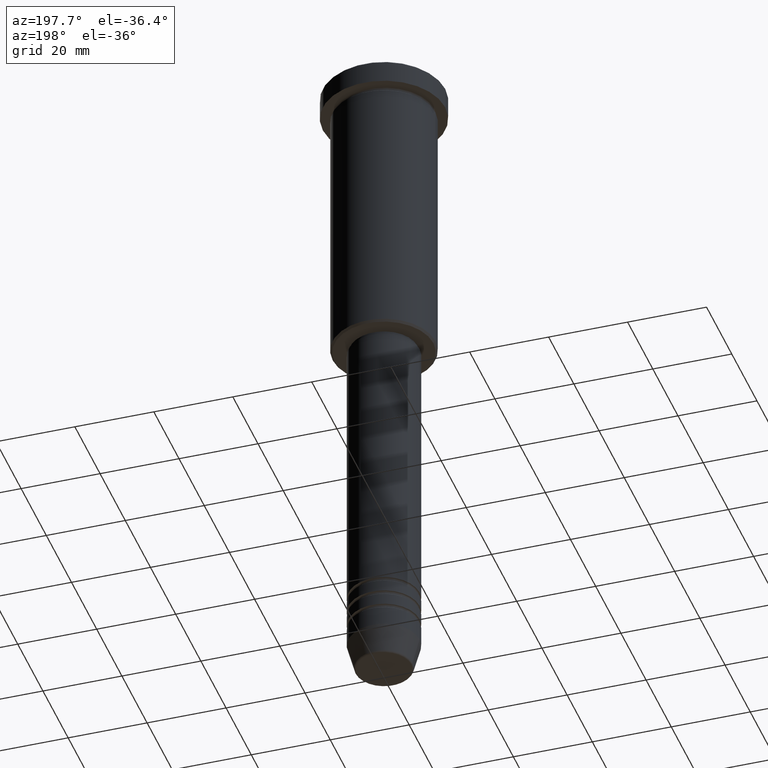
[diagram: clean part render]
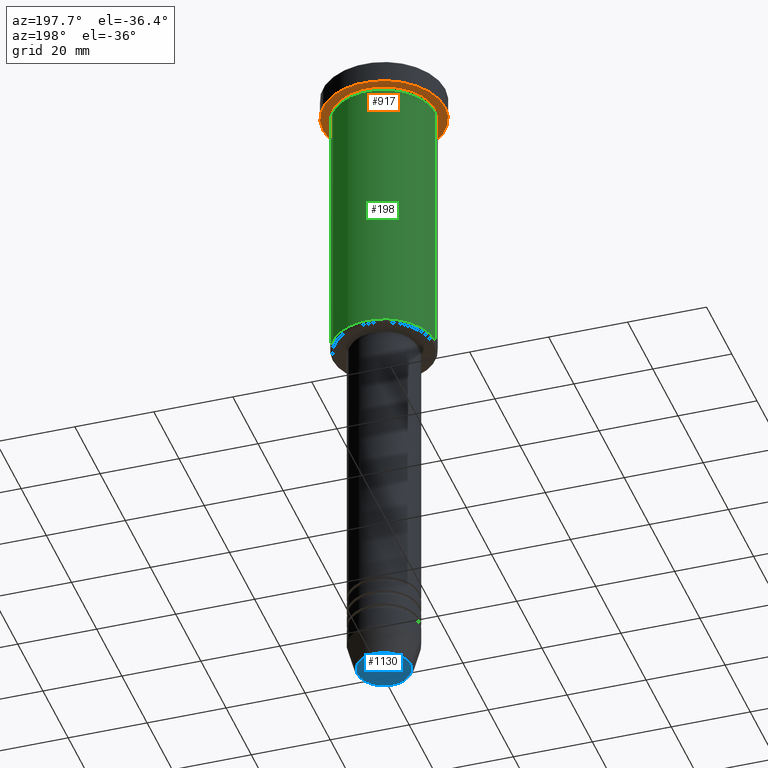
[diagram: same view with three faces highlighted in distinct colors, each labeled with its STEP entity id]
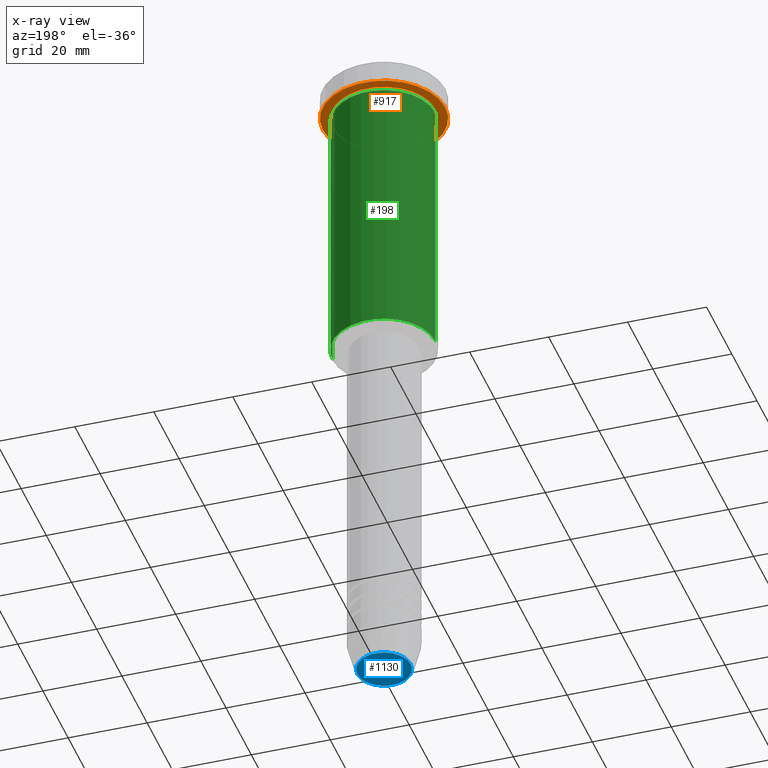
[diagram: x-ray of the same camera — body ghosted, the three highlighted faces saturated]
A machine part, auxiliary view with three faces highlighted in distinct colors.
The next image is the same camera in x-ray (body ghosted, the three faces saturated) — at least one of them is partly hidden behind the body in this view.
Their STEP definitions:

[orange] entity #917 — the highlighted planar face has unit normal (0, 0, -1).
#45 = ORIENTED_EDGE ( 'NONE', *, *, #734, .F. ) ;
#84 = FACE_OUTER_BOUND ( 'NONE', #620, .T. ) ;
#87 = CARTESIAN_POINT ( 'NONE',  ( -13.00000000000000000, 0.000000000000000000, -5.999999999999994671 ) ) ;
#104 = DIRECTION ( 'NONE',  ( -0.000000000000000000, -0.000000000000000000, 1.000000000000000000 ) ) ;
#113 = CIRCLE ( 'NONE', #990, 13.00000000000000000 ) ;
#168 = DIRECTION ( 'NONE',  ( -1.000000000000000000, 0.000000000000000000, 0.000000000000000000 ) ) ;
#172 = ORIENTED_EDGE ( 'NONE', *, *, #961, .T. ) ;
#191 = AXIS2_PLACEMENT_3D ( 'NONE', #788, #703, #611 ) ;
#202 = FACE_BOUND ( 'NONE', #670, .T. ) ;
#278 = DIRECTION ( 'NONE',  ( 0.000000000000000000, 0.000000000000000000, -1.000000000000000000 ) ) ;
#292 = VERTEX_POINT ( 'NONE', #572 ) ;
#297 = DIRECTION ( 'NONE',  ( 1.000000000000000000, 0.000000000000000000, 0.000000000000000000 ) ) ;
#364 = CIRCLE ( 'NONE', #553, 15.50000000000000000 ) ;
#367 = AXIS2_PLACEMENT_3D ( 'NONE', #1093, #278, #911 ) ;
#499 = VERTEX_POINT ( 'NONE', #619 ) ;
#507 = VERTEX_POINT ( 'NONE', #87 ) ;
#510 = DIRECTION ( 'NONE',  ( -1.000000000000000000, 0.000000000000000000, 0.000000000000000000 ) ) ;
#553 = AXIS2_PLACEMENT_3D ( 'NONE', #923, #104, #297 ) ;
#572 = CARTESIAN_POINT ( 'NONE',  ( 15.50000000000000000, 0.000000000000000000, -5.999999999999995559 ) ) ;
#573 = CIRCLE ( 'NONE', #592, 13.00000000000000000 ) ;
#592 = AXIS2_PLACEMENT_3D ( 'NONE', #1153, #615, #168 ) ;
#611 = DIRECTION ( 'NONE',  ( 1.000000000000000000, 0.000000000000000000, 0.000000000000000000 ) ) ;
#615 = DIRECTION ( 'NONE',  ( -0.000000000000000000, -0.000000000000000000, 1.000000000000000000 ) ) ;
#619 = CARTESIAN_POINT ( 'NONE',  ( 13.00000000000000000, 1.592040838891559095E-15, -5.999999999999994671 ) ) ;
#620 = EDGE_LOOP ( 'NONE', ( #1154, #45 ) ) ;
#647 = PLANE ( 'NONE',  #367 ) ;
#657 = ORIENTED_EDGE ( 'NONE', *, *, #939, .T. ) ;
#670 = EDGE_LOOP ( 'NONE', ( #657, #172 ) ) ;
#697 = CARTESIAN_POINT ( 'NONE',  ( 0.000000000000000000, 0.000000000000000000, -5.999999999999995559 ) ) ;
#703 = DIRECTION ( 'NONE',  ( -0.000000000000000000, -0.000000000000000000, 1.000000000000000000 ) ) ;
#710 = CIRCLE ( 'NONE', #191, 15.50000000000000000 ) ;
#734 = EDGE_CURVE ( 'NONE', #848, #292, #364, .T. ) ;
#787 = EDGE_CURVE ( 'NONE', #292, #848, #710, .T. ) ;
#788 = CARTESIAN_POINT ( 'NONE',  ( 0.000000000000000000, 0.000000000000000000, -5.999999999999995559 ) ) ;
#848 = VERTEX_POINT ( 'NONE', #1086 ) ;
#886 = DIRECTION ( 'NONE',  ( -0.000000000000000000, -0.000000000000000000, 1.000000000000000000 ) ) ;
#911 = DIRECTION ( 'NONE',  ( -1.000000000000000000, 0.000000000000000000, -0.000000000000000000 ) ) ;
#917 = ADVANCED_FACE ( 'NONE', ( #202, #84 ), #647, .T. ) ;
#923 = CARTESIAN_POINT ( 'NONE',  ( 0.000000000000000000, 0.000000000000000000, -5.999999999999995559 ) ) ;
#939 = EDGE_CURVE ( 'NONE', #507, #499, #113, .T. ) ;
#961 = EDGE_CURVE ( 'NONE', #499, #507, #573, .T. ) ;
#990 = AXIS2_PLACEMENT_3D ( 'NONE', #697, #886, #510 ) ;
#1086 = CARTESIAN_POINT ( 'NONE',  ( -15.50000000000000000, 1.898202538678397557E-15, -5.999999999999995559 ) ) ;
#1093 = CARTESIAN_POINT ( 'NONE',  ( 0.000000000000000000, 15.50000000000000000, -5.999999999999995559 ) ) ;
#1153 = CARTESIAN_POINT ( 'NONE',  ( 0.000000000000000000, 0.000000000000000000, -5.999999999999995559 ) ) ;
#1154 = ORIENTED_EDGE ( 'NONE', *, *, #787, .F. ) ;

[blue] entity #1130 — the highlighted planar face has unit normal (0, -0, 1).
#100 = CARTESIAN_POINT ( 'NONE',  ( 0.000000000000000000, 0.000000000000000000, -170.9999999999999716 ) ) ;
#194 = PLANE ( 'NONE',  #655 ) ;
#209 = AXIS2_PLACEMENT_3D ( 'NONE', #716, #252, #621 ) ;
#252 = DIRECTION ( 'NONE',  ( 0.000000000000000000, 0.000000000000000000, -1.000000000000000000 ) ) ;
#318 = VERTEX_POINT ( 'NONE', #1133 ) ;
#333 = CARTESIAN_POINT ( 'NONE',  ( 0.000000000000000000, 0.000000000000000000, -170.9999999999999716 ) ) ;
#345 = DIRECTION ( 'NONE',  ( 1.000000000000000000, 0.000000000000000000, 0.000000000000000000 ) ) ;
#346 = AXIS2_PLACEMENT_3D ( 'NONE', #333, #874, #887 ) ;
#376 = FACE_OUTER_BOUND ( 'NONE', #487, .T. ) ;
#381 = DIRECTION ( 'NONE',  ( 0.000000000000000000, -0.000000000000000000, 1.000000000000000000 ) ) ;
#487 = EDGE_LOOP ( 'NONE', ( #1103, #501 ) ) ;
#501 = ORIENTED_EDGE ( 'NONE', *, *, #1142, .T. ) ;
#621 = DIRECTION ( 'NONE',  ( 1.000000000000000000, 0.000000000000000000, 0.000000000000000000 ) ) ;
#624 = VERTEX_POINT ( 'NONE', #755 ) ;
#655 = AXIS2_PLACEMENT_3D ( 'NONE', #100, #381, #345 ) ;
#677 = CIRCLE ( 'NONE', #209, 6.740692158992658278 ) ;
#716 = CARTESIAN_POINT ( 'NONE',  ( 0.000000000000000000, 0.000000000000000000, -170.9999999999999716 ) ) ;
#755 = CARTESIAN_POINT ( 'NONE',  ( -6.740692158992658278, 8.550696569392685681E-16, -170.9999999999999716 ) ) ;
#874 = DIRECTION ( 'NONE',  ( 0.000000000000000000, 0.000000000000000000, -1.000000000000000000 ) ) ;
#887 = DIRECTION ( 'NONE',  ( 1.000000000000000000, 0.000000000000000000, 0.000000000000000000 ) ) ;
#980 = EDGE_CURVE ( 'NONE', #318, #624, #677, .T. ) ;
#1103 = ORIENTED_EDGE ( 'NONE', *, *, #980, .T. ) ;
#1126 = CIRCLE ( 'NONE', #346, 6.740692158992658278 ) ;
#1130 = ADVANCED_FACE ( 'NONE', ( #376 ), #194, .F. ) ;
#1133 = CARTESIAN_POINT ( 'NONE',  ( 6.740692158992658278, 0.000000000000000000, -170.9999999999999716 ) ) ;
#1142 = EDGE_CURVE ( 'NONE', #624, #318, #1126, .T. ) ;

[green] entity #198 — the highlighted cylindrical surface (partial cylindrical patch) has radius 13 mm, axis along (-0, -0, 1).
#21 = ORIENTED_EDGE ( 'NONE', *, *, #533, .F. ) ;
#83 = EDGE_CURVE ( 'NONE', #482, #335, #277, .T. ) ;
#122 = DIRECTION ( 'NONE',  ( 1.000000000000000000, 0.000000000000000000, 0.000000000000000000 ) ) ;
#178 = CARTESIAN_POINT ( 'NONE',  ( 0.000000000000000000, 0.000000000000000000, -75.49999999999995737 ) ) ;
#185 = EDGE_CURVE ( 'NONE', #878, #1034, #743, .T. ) ;
#196 = CYLINDRICAL_SURFACE ( 'NONE', #855, 13.00000000000000178 ) ;
#198 = ADVANCED_FACE ( 'NONE', ( #1010 ), #196, .T. ) ;
#214 = DIRECTION ( 'NONE',  ( -0.000000000000000000, -0.000000000000000000, 1.000000000000000000 ) ) ;
#262 = VECTOR ( 'NONE', #214, 1000.000000000000000 ) ;
#264 = DIRECTION ( 'NONE',  ( -0.000000000000000000, -0.000000000000000000, 1.000000000000000000 ) ) ;
#277 = LINE ( 'NONE', #544, #816 ) ;
#299 = CARTESIAN_POINT ( 'NONE',  ( 0.000000000000000000, 0.000000000000000000, 0.000000000000000000 ) ) ;
#335 = VERTEX_POINT ( 'NONE', #509 ) ;
#434 = EDGE_LOOP ( 'NONE', ( #595, #1040, #21, #569 ) ) ;
#455 = CARTESIAN_POINT ( 'NONE',  ( -13.00000000000000178, 1.592040838891559293E-15, -6.999999999999995559 ) ) ;
#479 = DIRECTION ( 'NONE',  ( -0.000000000000000000, -0.000000000000000000, 1.000000000000000000 ) ) ;
#482 = VERTEX_POINT ( 'NONE', #1076 ) ;
#509 = CARTESIAN_POINT ( 'NONE',  ( 13.00000000000000178, 0.000000000000000000, -6.999999999999995559 ) ) ;
#533 = EDGE_CURVE ( 'NONE', #335, #1034, #1042, .T. ) ;
#544 = CARTESIAN_POINT ( 'NONE',  ( 13.00000000000000178, 0.000000000000000000, 0.000000000000000000 ) ) ;
#546 = DIRECTION ( 'NONE',  ( 1.000000000000000000, 0.000000000000000000, 0.000000000000000000 ) ) ;
#569 = ORIENTED_EDGE ( 'NONE', *, *, #83, .F. ) ;
#595 = ORIENTED_EDGE ( 'NONE', *, *, #822, .T. ) ;
#652 = AXIS2_PLACEMENT_3D ( 'NONE', #178, #972, #982 ) ;
#743 = LINE ( 'NONE', #1100, #262 ) ;
#762 = AXIS2_PLACEMENT_3D ( 'NONE', #996, #264, #546 ) ;
#816 = VECTOR ( 'NONE', #1078, 1000.000000000000000 ) ;
#822 = EDGE_CURVE ( 'NONE', #482, #878, #1156, .T. ) ;
#855 = AXIS2_PLACEMENT_3D ( 'NONE', #299, #479, #122 ) ;
#878 = VERTEX_POINT ( 'NONE', #958 ) ;
#958 = CARTESIAN_POINT ( 'NONE',  ( -13.00000000000000178, 1.592040838891559293E-15, -75.49999999999995737 ) ) ;
#972 = DIRECTION ( 'NONE',  ( -0.000000000000000000, -0.000000000000000000, 1.000000000000000000 ) ) ;
#982 = DIRECTION ( 'NONE',  ( -1.000000000000000000, 0.000000000000000000, 0.000000000000000000 ) ) ;
#996 = CARTESIAN_POINT ( 'NONE',  ( 0.000000000000000000, 0.000000000000000000, -6.999999999999995559 ) ) ;
#1010 = FACE_OUTER_BOUND ( 'NONE', #434, .T. ) ;
#1034 = VERTEX_POINT ( 'NONE', #455 ) ;
#1040 = ORIENTED_EDGE ( 'NONE', *, *, #185, .T. ) ;
#1042 = CIRCLE ( 'NONE', #762, 13.00000000000000178 ) ;
#1076 = CARTESIAN_POINT ( 'NONE',  ( 13.00000000000000178, 0.000000000000000000, -75.49999999999995737 ) ) ;
#1078 = DIRECTION ( 'NONE',  ( -0.000000000000000000, -0.000000000000000000, 1.000000000000000000 ) ) ;
#1100 = CARTESIAN_POINT ( 'NONE',  ( -13.00000000000000178, 1.592040838891559293E-15, 0.000000000000000000 ) ) ;
#1156 = CIRCLE ( 'NONE', #652, 13.00000000000000178 ) ;